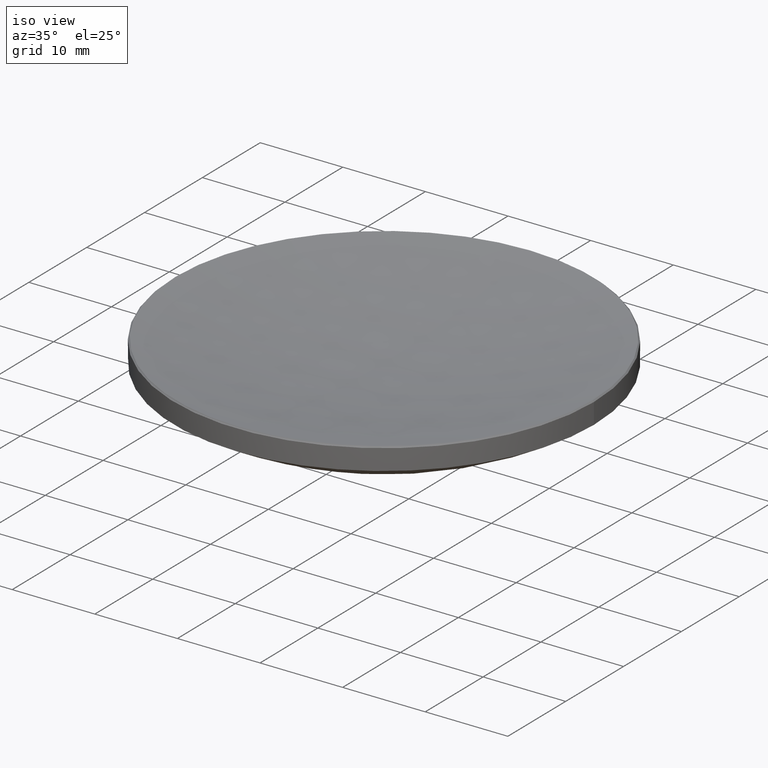
[diagram: clean part render]
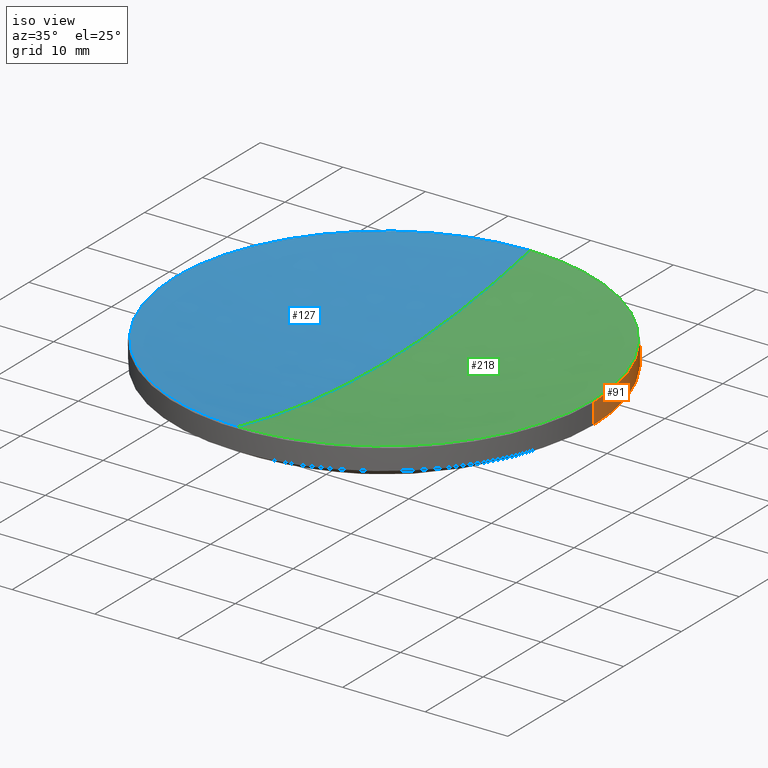
[diagram: same view with three faces highlighted in distinct colors, each labeled with its STEP entity id]
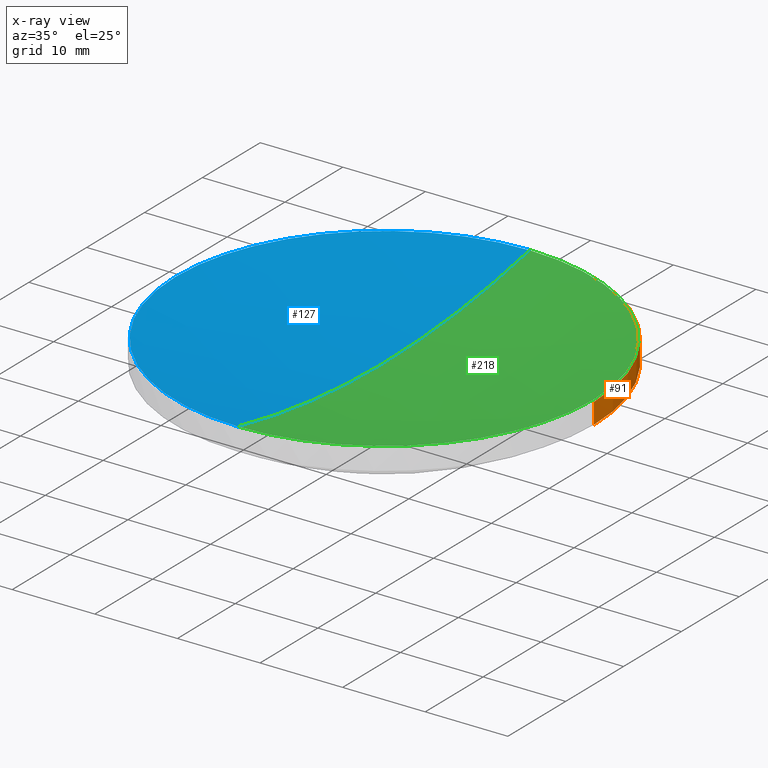
[diagram: x-ray of the same camera — body ghosted, the three highlighted faces saturated]
A machine part, iso view with three faces highlighted in distinct colors.
The next image is the same camera in x-ray (body ghosted, the three faces saturated) — at least one of them is partly hidden behind the body in this view.
Their STEP definitions:

[orange] entity #91 — the highlighted cylindrical surface (partial cylindrical patch) has radius 25.4 mm, axis along (-0, -0, -1).
#3 = VECTOR ( 'NONE', #159, 1000.000000000000000 ) ;
#9 = EDGE_LOOP ( 'NONE', ( #49, #241, #60, #268, #126 ) ) ;
#10 = CIRCLE ( 'NONE', #173, 25.39999999999999503 ) ;
#12 = VERTEX_POINT ( 'NONE', #98 ) ;
#16 = LINE ( 'NONE', #64, #151 ) ;
#18 = DIRECTION ( 'NONE',  ( 0.000000000000000000, 0.000000000000000000, -1.000000000000000000 ) ) ;
#19 = VERTEX_POINT ( 'NONE', #184 ) ;
#22 = CARTESIAN_POINT ( 'NONE',  ( 0.000000000000000000, 0.000000000000000000, 15.49999999999997158 ) ) ;
#23 = DIRECTION ( 'NONE',  ( -0.000000000000000000, -0.000000000000000000, 1.000000000000000000 ) ) ;
#28 = CARTESIAN_POINT ( 'NONE',  ( -25.39999999999999858, 0.000000000000000000, 20.00000000000000000 ) ) ;
#30 = EDGE_CURVE ( 'NONE', #19, #12, #16, .T. ) ;
#38 = CARTESIAN_POINT ( 'NONE',  ( 0.000000000000000000, 0.000000000000000000, 13.00000000000000000 ) ) ;
#43 = CARTESIAN_POINT ( 'NONE',  ( 0.000000000000000000, 0.000000000000000000, 20.00000000000000000 ) ) ;
#45 = EDGE_CURVE ( 'NONE', #54, #104, #10, .T. ) ;
#46 = CIRCLE ( 'NONE', #179, 25.39999999999999503 ) ;
#49 = ORIENTED_EDGE ( 'NONE', *, *, #134, .T. ) ;
#54 = VERTEX_POINT ( 'NONE', #189 ) ;
#60 = ORIENTED_EDGE ( 'NONE', *, *, #106, .T. ) ;
#63 = FACE_OUTER_BOUND ( 'NONE', #9, .T. ) ;
#64 = CARTESIAN_POINT ( 'NONE',  ( 25.39999999999999858, 3.110602869834276865E-15, 20.00000000000000000 ) ) ;
#76 = AXIS2_PLACEMENT_3D ( 'NONE', #22, #18, #84 ) ;
#83 = VERTEX_POINT ( 'NONE', #235 ) ;
#84 = DIRECTION ( 'NONE',  ( 1.000000000000000000, 0.000000000000000000, 0.000000000000000000 ) ) ;
#91 = ADVANCED_FACE ( 'NONE', ( #63 ), #149, .T. ) ;
#98 = CARTESIAN_POINT ( 'NONE',  ( 25.39999999999999503, 3.110602869834276471E-15, 13.00000000000000000 ) ) ;
#104 = VERTEX_POINT ( 'NONE', #213 ) ;
#106 = EDGE_CURVE ( 'NONE', #12, #54, #46, .T. ) ;
#122 = DIRECTION ( 'NONE',  ( 1.000000000000000000, 0.000000000000000000, 0.000000000000000000 ) ) ;
#125 = DIRECTION ( 'NONE',  ( -0.000000000000000000, -0.000000000000000000, -1.000000000000000000 ) ) ;
#126 = ORIENTED_EDGE ( 'NONE', *, *, #176, .F. ) ;
#131 = DIRECTION ( 'NONE',  ( -0.000000000000000000, -0.000000000000000000, -1.000000000000000000 ) ) ;
#134 = EDGE_CURVE ( 'NONE', #83, #19, #158, .T. ) ;
#146 = AXIS2_PLACEMENT_3D ( 'NONE', #43, #131, #282 ) ;
#149 = CYLINDRICAL_SURFACE ( 'NONE', #146, 25.39999999999999858 ) ;
#151 = VECTOR ( 'NONE', #125, 1000.000000000000000 ) ;
#152 = CARTESIAN_POINT ( 'NONE',  ( 0.000000000000000000, 0.000000000000000000, 13.00000000000000000 ) ) ;
#158 = CIRCLE ( 'NONE', #76, 25.39999999999999858 ) ;
#159 = DIRECTION ( 'NONE',  ( -0.000000000000000000, -0.000000000000000000, -1.000000000000000000 ) ) ;
#168 = DIRECTION ( 'NONE',  ( -0.000000000000000000, -0.000000000000000000, 1.000000000000000000 ) ) ;
#173 = AXIS2_PLACEMENT_3D ( 'NONE', #152, #168, #122 ) ;
#176 = EDGE_CURVE ( 'NONE', #83, #104, #183, .T. ) ;
#179 = AXIS2_PLACEMENT_3D ( 'NONE', #38, #23, #231 ) ;
#183 = LINE ( 'NONE', #28, #3 ) ;
#184 = CARTESIAN_POINT ( 'NONE',  ( 25.39999999999999858, 3.110602869834276865E-15, 15.49999999999997158 ) ) ;
#189 = CARTESIAN_POINT ( 'NONE',  ( 0.000000000000000000, 25.39999999999999858, 12.99999999999999822 ) ) ;
#213 = CARTESIAN_POINT ( 'NONE',  ( -25.39999999999999503, 0.000000000000000000, 13.00000000000000000 ) ) ;
#231 = DIRECTION ( 'NONE',  ( 1.000000000000000000, 0.000000000000000000, 0.000000000000000000 ) ) ;
#235 = CARTESIAN_POINT ( 'NONE',  ( -25.39999999999999858, 0.000000000000000000, 15.49999999999997158 ) ) ;
#241 = ORIENTED_EDGE ( 'NONE', *, *, #30, .T. ) ;
#268 = ORIENTED_EDGE ( 'NONE', *, *, #45, .T. ) ;
#282 = DIRECTION ( 'NONE',  ( -1.000000000000000000, 0.000000000000000000, 0.000000000000000000 ) ) ;

[blue] entity #127 — the highlighted spherical surface has radius 119.32 mm.
#2 = CARTESIAN_POINT ( 'NONE',  ( 0.000000000000000000, 0.000000000000000000, 15.66432118436585164 ) ) ;
#4 = EDGE_CURVE ( 'NONE', #138, #178, #260, .T. ) ;
#15 = DIRECTION ( 'NONE',  ( 1.000000000000000000, 0.000000000000000000, 0.000000000000000000 ) ) ;
#17 = ORIENTED_EDGE ( 'NONE', *, *, #276, .T. ) ;
#27 = ORIENTED_EDGE ( 'NONE', *, *, #155, .T. ) ;
#35 = DIRECTION ( 'NONE',  ( -1.000000000000000000, 1.224646799147353207E-16, 0.000000000000000000 ) ) ;
#40 = FACE_OUTER_BOUND ( 'NONE', #116, .T. ) ;
#42 = CARTESIAN_POINT ( 'NONE',  ( 0.000000000000000000, 0.000000000000000000, 132.2851722990535279 ) ) ;
#55 = DIRECTION ( 'NONE',  ( -1.224646799147353207E-16, -1.000000000000000000, 0.000000000000000000 ) ) ;
#57 = VERTEX_POINT ( 'NONE', #78 ) ;
#59 = CIRCLE ( 'NONE', #214, 25.23567881563414517 ) ;
#69 = DIRECTION ( 'NONE',  ( -0.000000000000000000, -0.000000000000000000, 1.000000000000000000 ) ) ;
#70 = ORIENTED_EDGE ( 'NONE', *, *, #101, .T. ) ;
#71 = CARTESIAN_POINT ( 'NONE',  ( 0.000000000000000000, 0.000000000000000000, 132.2851722990535279 ) ) ;
#72 = CARTESIAN_POINT ( 'NONE',  ( 0.000000000000000000, 0.000000000000000000, 15.66432118436585164 ) ) ;
#78 = CARTESIAN_POINT ( 'NONE',  ( 0.000000000000000000, 25.23567881563418425, 15.66432118436585164 ) ) ;
#79 = VERTEX_POINT ( 'NONE', #195 ) ;
#97 = DIRECTION ( 'NONE',  ( 1.000000000000000000, 0.000000000000000000, 0.000000000000000000 ) ) ;
#100 = SPHERICAL_SURFACE ( 'NONE', #201, 119.3200000000000074 ) ;
#101 = EDGE_CURVE ( 'NONE', #79, #178, #59, .T. ) ;
#103 = CARTESIAN_POINT ( 'NONE',  ( 0.000000000000000000, 7.306242803713110362E-15, 12.96517229905352941 ) ) ;
#113 = AXIS2_PLACEMENT_3D ( 'NONE', #71, #15, #164 ) ;
#116 = EDGE_LOOP ( 'NONE', ( #141, #17, #27, #70 ) ) ;
#127 = ADVANCED_FACE ( 'NONE', ( #40 ), #100, .F. ) ;
#129 = DIRECTION ( 'NONE',  ( 0.000000000000000000, 1.000000000000000000, 0.000000000000000000 ) ) ;
#130 = CIRCLE ( 'NONE', #113, 119.3200000000000074 ) ;
#138 = VERTEX_POINT ( 'NONE', #103 ) ;
#141 = ORIENTED_EDGE ( 'NONE', *, *, #4, .F. ) ;
#148 = DIRECTION ( 'NONE',  ( 1.000000000000000000, 0.000000000000000000, 0.000000000000000000 ) ) ;
#154 = AXIS2_PLACEMENT_3D ( 'NONE', #72, #69, #97 ) ;
#155 = EDGE_CURVE ( 'NONE', #57, #79, #277, .T. ) ;
#164 = DIRECTION ( 'NONE',  ( 0.000000000000000000, 0.000000000000000000, -1.000000000000000000 ) ) ;
#178 = VERTEX_POINT ( 'NONE', #269 ) ;
#195 = CARTESIAN_POINT ( 'NONE',  ( -25.23567881563414872, 0.000000000000000000, 15.66432118436585164 ) ) ;
#198 = AXIS2_PLACEMENT_3D ( 'NONE', #227, #35, #55 ) ;
#201 = AXIS2_PLACEMENT_3D ( 'NONE', #42, #211, #129 ) ;
#211 = DIRECTION ( 'NONE',  ( -1.000000000000000000, 0.000000000000000000, 0.000000000000000000 ) ) ;
#214 = AXIS2_PLACEMENT_3D ( 'NONE', #2, #232, #148 ) ;
#227 = CARTESIAN_POINT ( 'NONE',  ( 0.000000000000000000, 0.000000000000000000, 132.2851722990535279 ) ) ;
#232 = DIRECTION ( 'NONE',  ( -0.000000000000000000, -0.000000000000000000, 1.000000000000000000 ) ) ;
#260 = CIRCLE ( 'NONE', #198, 119.3200000000000074 ) ;
#269 = CARTESIAN_POINT ( 'NONE',  ( -3.090479328587706859E-15, -25.23567881563418425, 15.66432118436585164 ) ) ;
#276 = EDGE_CURVE ( 'NONE', #138, #57, #130, .T. ) ;
#277 = CIRCLE ( 'NONE', #154, 25.23567881563414517 ) ;

[green] entity #218 — the highlighted spherical surface has radius 119.32 mm.
#4 = EDGE_CURVE ( 'NONE', #138, #178, #260, .T. ) ;
#7 = CARTESIAN_POINT ( 'NONE',  ( 0.000000000000000000, 0.000000000000000000, 132.2851722990535279 ) ) ;
#14 = ORIENTED_EDGE ( 'NONE', *, *, #175, .T. ) ;
#15 = DIRECTION ( 'NONE',  ( 1.000000000000000000, 0.000000000000000000, 0.000000000000000000 ) ) ;
#24 = CIRCLE ( 'NONE', #111, 25.23567881563414517 ) ;
#33 = ORIENTED_EDGE ( 'NONE', *, *, #276, .F. ) ;
#35 = DIRECTION ( 'NONE',  ( -1.000000000000000000, 1.224646799147353207E-16, 0.000000000000000000 ) ) ;
#39 = DIRECTION ( 'NONE',  ( -0.000000000000000000, -0.000000000000000000, 1.000000000000000000 ) ) ;
#50 = VERTEX_POINT ( 'NONE', #75 ) ;
#53 = AXIS2_PLACEMENT_3D ( 'NONE', #7, #139, #56 ) ;
#55 = DIRECTION ( 'NONE',  ( -1.224646799147353207E-16, -1.000000000000000000, 0.000000000000000000 ) ) ;
#56 = DIRECTION ( 'NONE',  ( 0.000000000000000000, 1.000000000000000000, 0.000000000000000000 ) ) ;
#57 = VERTEX_POINT ( 'NONE', #78 ) ;
#71 = CARTESIAN_POINT ( 'NONE',  ( 0.000000000000000000, 0.000000000000000000, 132.2851722990535279 ) ) ;
#73 = DIRECTION ( 'NONE',  ( 1.000000000000000000, 0.000000000000000000, 0.000000000000000000 ) ) ;
#75 = CARTESIAN_POINT ( 'NONE',  ( 25.23567881563414872, 3.100541099210989890E-15, 15.66432118436585164 ) ) ;
#77 = AXIS2_PLACEMENT_3D ( 'NONE', #226, #39, #246 ) ;
#78 = CARTESIAN_POINT ( 'NONE',  ( 0.000000000000000000, 25.23567881563418425, 15.66432118436585164 ) ) ;
#94 = FACE_OUTER_BOUND ( 'NONE', #233, .T. ) ;
#103 = CARTESIAN_POINT ( 'NONE',  ( 0.000000000000000000, 7.306242803713110362E-15, 12.96517229905352941 ) ) ;
#111 = AXIS2_PLACEMENT_3D ( 'NONE', #219, #161, #73 ) ;
#113 = AXIS2_PLACEMENT_3D ( 'NONE', #71, #15, #164 ) ;
#130 = CIRCLE ( 'NONE', #113, 119.3200000000000074 ) ;
#137 = ORIENTED_EDGE ( 'NONE', *, *, #4, .T. ) ;
#138 = VERTEX_POINT ( 'NONE', #103 ) ;
#139 = DIRECTION ( 'NONE',  ( -1.000000000000000000, 0.000000000000000000, 0.000000000000000000 ) ) ;
#142 = SPHERICAL_SURFACE ( 'NONE', #53, 119.3200000000000074 ) ;
#161 = DIRECTION ( 'NONE',  ( -0.000000000000000000, -0.000000000000000000, 1.000000000000000000 ) ) ;
#164 = DIRECTION ( 'NONE',  ( 0.000000000000000000, 0.000000000000000000, -1.000000000000000000 ) ) ;
#175 = EDGE_CURVE ( 'NONE', #50, #57, #24, .T. ) ;
#178 = VERTEX_POINT ( 'NONE', #269 ) ;
#198 = AXIS2_PLACEMENT_3D ( 'NONE', #227, #35, #55 ) ;
#212 = CIRCLE ( 'NONE', #77, 25.23567881563414517 ) ;
#218 = ADVANCED_FACE ( 'NONE', ( #94 ), #142, .F. ) ;
#219 = CARTESIAN_POINT ( 'NONE',  ( 0.000000000000000000, 0.000000000000000000, 15.66432118436585164 ) ) ;
#225 = ORIENTED_EDGE ( 'NONE', *, *, #234, .T. ) ;
#226 = CARTESIAN_POINT ( 'NONE',  ( 0.000000000000000000, 0.000000000000000000, 15.66432118436585164 ) ) ;
#227 = CARTESIAN_POINT ( 'NONE',  ( 0.000000000000000000, 0.000000000000000000, 132.2851722990535279 ) ) ;
#233 = EDGE_LOOP ( 'NONE', ( #33, #137, #225, #14 ) ) ;
#234 = EDGE_CURVE ( 'NONE', #178, #50, #212, .T. ) ;
#246 = DIRECTION ( 'NONE',  ( 1.000000000000000000, 0.000000000000000000, 0.000000000000000000 ) ) ;
#260 = CIRCLE ( 'NONE', #198, 119.3200000000000074 ) ;
#269 = CARTESIAN_POINT ( 'NONE',  ( -3.090479328587706859E-15, -25.23567881563418425, 15.66432118436585164 ) ) ;
#276 = EDGE_CURVE ( 'NONE', #138, #57, #130, .T. ) ;